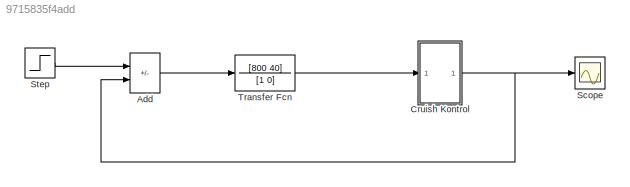
MODEL slx_9715835f4add
KIND model
CONFIG AbsTol = auto
CONFIG EnableMultiTasking = off
CONFIG FixedStep = auto
CONFIG MaxStep = auto
CONFIG MinStep = auto
CONFIG RelTol = 1e-3
CONFIG SampleTimeConstraint = Unconstrained
CONFIG SolverName = VariableStepAuto
CONFIG StartTime = 0.0
CONFIG StopTime = 10.0
BLOCK [Sum] Add
  IconShape = rectangular
  Inputs = +-
  Ports = [2, 1]
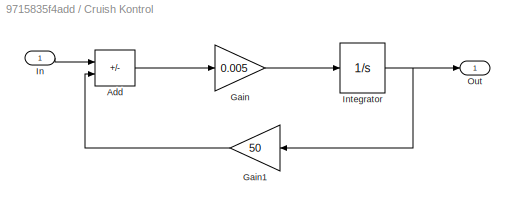
BLOCK [SubSystem] Cruish Kontrol
  Ports = [1, 1]
  RequestExecContextInheritance = off
BLOCK [Sum] Cruish Kontrol/Add
  IconShape = rectangular
  Inputs = +-
  Ports = [2, 1]
BLOCK [Gain] Cruish Kontrol/Gain
  Gain = 0.005
BLOCK [Gain] Cruish Kontrol/Gain1
  Gain = 50
BLOCK [Inport] Cruish Kontrol/In
BLOCK [Integrator] Cruish Kontrol/Integrator
  Ports = [1, 1]
BLOCK [Outport] Cruish Kontrol/Out
BLOCK [Scope] Scope
  Floating = off
  NumInputPorts = 1
  Ports = [1]
  ScopeSpecificationString = Simulink.scopes.TimeScopeBlockCfg('CurrentConfiguration', extmgr.ConfigurationSet(extmgr.Configuration('Core','General UI',true),extmgr.Configuration('Core','Source UI',true),extmgr.Configuration('Sources','WiredSimulink',true),extmgr.Configuration('Visuals','Time Domain',true,'SerializedDisplays',{struct('MinYLimReal','-0.12103','MaxYLimReal','1.08929','YLabelReal','','MinYLimMag','0.00000','MaxY...<+1398ch>
BLOCK [Step] Step
  SampleTime = 0
BLOCK [TransferFcn] Transfer Fcn
  Denominator = [1 0]
  Numerator = [800 40]
LINE Add:1 -> Transfer Fcn:1
LINE Cruish Kontrol/Add:1 -> Cruish Kontrol/Gain:1
LINE Cruish Kontrol/Gain1:1 -> Cruish Kontrol/Add:2
LINE Cruish Kontrol/Gain:1 -> Cruish Kontrol/Integrator:1
LINE Cruish Kontrol/In:1 -> Cruish Kontrol/Add:1
NET Cruish Kontrol/Integrator:1 -> Cruish Kontrol/Gain1:1, Cruish Kontrol/Out:1
NET Cruish Kontrol:1 -> Add:2, Scope:1
LINE Step:1 -> Add:1
LINE Transfer Fcn:1 -> Cruish Kontrol:1
note: NET lines group one-source signal fan-out (src -> all destinations, sorted); 1:1 wires keep LINE
